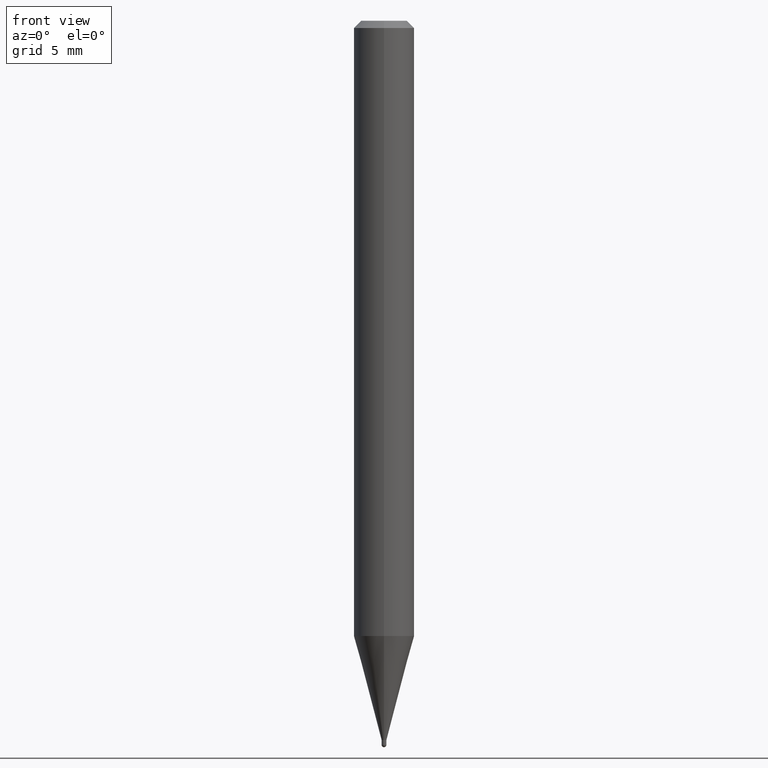
[diagram: clean part render]
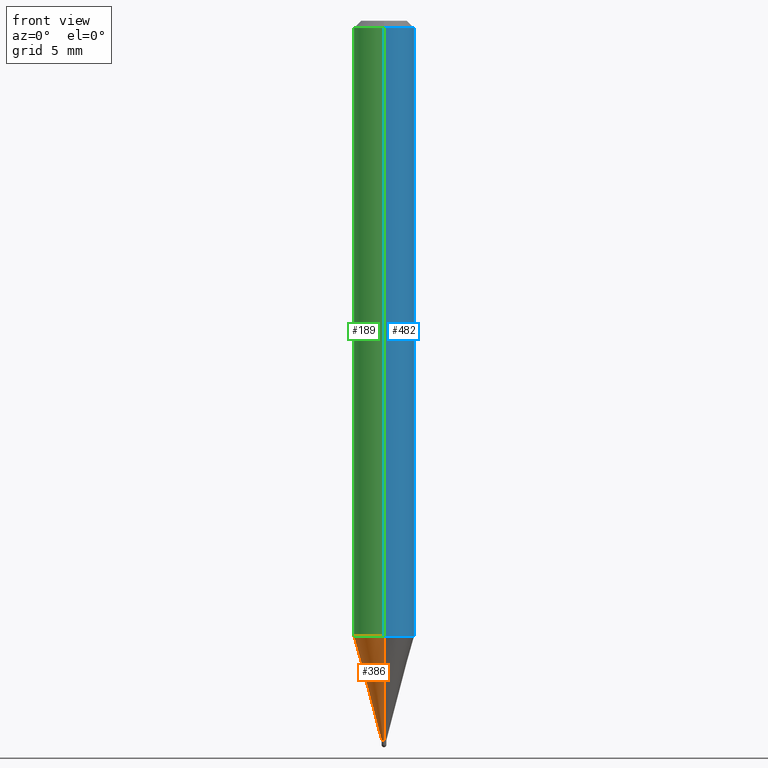
[diagram: same view with three faces highlighted in distinct colors, each labeled with its STEP entity id]
A machine part, front view with three faces highlighted in distinct colors.
Their STEP definitions:

[orange] entity #386 — the highlighted conical surface has half-angle 15 deg.
#7 = CARTESIAN_POINT ( 'NONE',  ( 3.552713678803991097E-17, 0.004999999999994617257, -1.485000000000000098 ) ) ;
#19 = CONICAL_SURFACE ( 'NONE', #312, 0.004999999999999800611, 0.2617993877991576235 ) ;
#25 = DIRECTION ( 'NONE',  ( -1.807323732225379838E-15, -0.2588190451025252914, 0.9659258262890670910 ) ) ;
#29 = DIRECTION ( 'NONE',  ( -6.982962677686265922E-15, -1.000000000000000000, 0.000000000000000000 ) ) ;
#37 = CARTESIAN_POINT ( 'NONE',  ( -4.364351673553606573E-16, -0.06250000000000444089, -1.270407078564795622 ) ) ;
#42 = CIRCLE ( 'NONE', #368, 0.004999999999999800611 ) ;
#61 = ORIENTED_EDGE ( 'NONE', *, *, #192, .F. ) ;
#70 = VERTEX_POINT ( 'NONE', #470 ) ;
#83 = VECTOR ( 'NONE', #118, 39.37007874015748854 ) ;
#102 = DIRECTION ( 'NONE',  ( -2.446180720103943212E-29, 3.490461837591790659E-15, 1.000000000000000000 ) ) ;
#105 = ORIENTED_EDGE ( 'NONE', *, *, #401, .T. ) ;
#118 = DIRECTION ( 'NONE',  ( 1.839019923739650408E-15, 0.2588190451025320082, 0.9659258262890650926 ) ) ;
#134 = VERTEX_POINT ( 'NONE', #157 ) ;
#157 = CARTESIAN_POINT ( 'NONE',  ( 4.440892098500935790E-16, 0.06249999999999556605, -1.270407078564796288 ) ) ;
#161 = VECTOR ( 'NONE', #25, 39.37007874015748143 ) ;
#180 = LINE ( 'NONE', #221, #161 ) ;
#192 = EDGE_CURVE ( 'NONE', #70, #134, #390, .T. ) ;
#219 = VERTEX_POINT ( 'NONE', #472 ) ;
#220 = ORIENTED_EDGE ( 'NONE', *, *, #506, .F. ) ;
#221 = CARTESIAN_POINT ( 'NONE',  ( -3.491481338839360505E-17, -0.005000000000004983097, -1.485000000000000098 ) ) ;
#266 = FACE_OUTER_BOUND ( 'NONE', #463, .T. ) ;
#270 = CIRCLE ( 'NONE', #434, 0.06250000000000000000 ) ;
#312 = AXIS2_PLACEMENT_3D ( 'NONE', #364, #102, #418 ) ;
#330 = ORIENTED_EDGE ( 'NONE', *, *, #433, .T. ) ;
#348 = DIRECTION ( 'NONE',  ( -2.446180720103943212E-29, 3.490461837591790659E-15, 1.000000000000000000 ) ) ;
#350 = DIRECTION ( 'NONE',  ( -6.982962677686265922E-15, -1.000000000000000000, 4.370956789862821150E-15 ) ) ;
#364 = CARTESIAN_POINT ( 'NONE',  ( 3.632578369354356333E-29, -5.183335828823809468E-15, -1.485000000000000098 ) ) ;
#368 = AXIS2_PLACEMENT_3D ( 'NONE', #505, #348, #29 ) ;
#386 = ADVANCED_FACE ( 'NONE', ( #266 ), #19, .T. ) ;
#390 = LINE ( 'NONE', #7, #83 ) ;
#401 = EDGE_CURVE ( 'NONE', #219, #446, #180, .T. ) ;
#418 = DIRECTION ( 'NONE',  ( -6.982962677686265922E-15, -1.000000000000000000, 0.000000000000000000 ) ) ;
#430 = CARTESIAN_POINT ( 'NONE',  ( 3.107645302268779211E-29, -4.434307425936895127E-15, -1.270407078564796066 ) ) ;
#433 = EDGE_CURVE ( 'NONE', #70, #219, #42, .T. ) ;
#434 = AXIS2_PLACEMENT_3D ( 'NONE', #430, #466, #350 ) ;
#446 = VERTEX_POINT ( 'NONE', #37 ) ;
#463 = EDGE_LOOP ( 'NONE', ( #61, #330, #105, #220 ) ) ;
#466 = DIRECTION ( 'NONE',  ( -2.446180720103943212E-29, 3.490461837591790659E-15, 1.000000000000000000 ) ) ;
#470 = CARTESIAN_POINT ( 'NONE',  ( 2.398081733190669114E-16, 0.004999999999994617257, -1.485000000000000098 ) ) ;
#472 = CARTESIAN_POINT ( 'NONE',  ( -3.491481338839360505E-17, -0.005000000000004983097, -1.485000000000000098 ) ) ;
#505 = CARTESIAN_POINT ( 'NONE',  ( 3.632578369354356333E-29, -5.183335828823809468E-15, -1.485000000000000098 ) ) ;
#506 = EDGE_CURVE ( 'NONE', #134, #446, #270, .T. ) ;

[blue] entity #482 — the highlighted cylindrical surface (edge-blend (fillet) strip) has radius 1.5875 mm, axis along (-0, 0, 1).
#2 = CARTESIAN_POINT ( 'NONE',  ( 0.000000000000000000, 0.000000000000000000, 0.000000000000000000 ) ) ;
#37 = CARTESIAN_POINT ( 'NONE',  ( -4.364351673553606573E-16, -0.06250000000000444089, -1.270407078564795622 ) ) ;
#57 = ORIENTED_EDGE ( 'NONE', *, *, #218, .F. ) ;
#77 = CARTESIAN_POINT ( 'NONE',  ( 3.669271080155917288E-31, -5.235692756387689045E-17, -0.01500000000000000812 ) ) ;
#85 = AXIS2_PLACEMENT_3D ( 'NONE', #291, #428, #149 ) ;
#119 = AXIS2_PLACEMENT_3D ( 'NONE', #77, #281, #359 ) ;
#122 = CARTESIAN_POINT ( 'NONE',  ( 4.440892098500625669E-16, 0.06250000000000000000, -2.181538648494869162E-16 ) ) ;
#130 = CARTESIAN_POINT ( 'NONE',  ( -4.364351673553912750E-16, -0.06250000000000005551, -0.01499999999999979128 ) ) ;
#134 = VERTEX_POINT ( 'NONE', #157 ) ;
#145 = ORIENTED_EDGE ( 'NONE', *, *, #444, .F. ) ;
#149 = DIRECTION ( 'NONE',  ( -6.982962677686265922E-15, -1.000000000000000000, 4.370956789862821150E-15 ) ) ;
#151 = DIRECTION ( 'NONE',  ( -6.982962677686265922E-15, -1.000000000000000000, 3.490461837591790659E-15 ) ) ;
#154 = CARTESIAN_POINT ( 'NONE',  ( -4.364351673553916201E-16, -0.06250000000000000000, 2.181538648494869162E-16 ) ) ;
#157 = CARTESIAN_POINT ( 'NONE',  ( 4.440892098500935790E-16, 0.06249999999999556605, -1.270407078564796288 ) ) ;
#173 = ORIENTED_EDGE ( 'NONE', *, *, #421, .T. ) ;
#177 = ORIENTED_EDGE ( 'NONE', *, *, #468, .T. ) ;
#187 = LINE ( 'NONE', #122, #484 ) ;
#197 = CIRCLE ( 'NONE', #85, 0.06250000000000000000 ) ;
#199 = DIRECTION ( 'NONE',  ( -2.446180720103942932E-29, 3.490461837591790659E-15, 1.000000000000000000 ) ) ;
#200 = CARTESIAN_POINT ( 'NONE',  ( 4.440892098500937762E-16, 0.06249999999999993755, -0.01500000000000022669 ) ) ;
#218 = EDGE_CURVE ( 'NONE', #349, #232, #278, .T. ) ;
#227 = DIRECTION ( 'NONE',  ( -2.446180720103943212E-29, 3.490461837591790659E-15, 1.000000000000000000 ) ) ;
#232 = VERTEX_POINT ( 'NONE', #200 ) ;
#278 = CIRCLE ( 'NONE', #119, 0.06250000000000000000 ) ;
#281 = DIRECTION ( 'NONE',  ( -2.446180720103943212E-29, 3.490461837591790659E-15, 1.000000000000000000 ) ) ;
#291 = CARTESIAN_POINT ( 'NONE',  ( 3.107645302268779211E-29, -4.434307425936895127E-15, -1.270407078564796066 ) ) ;
#306 = DIRECTION ( 'NONE',  ( -2.446180720103942932E-29, 3.490461837591790659E-15, 1.000000000000000000 ) ) ;
#327 = EDGE_LOOP ( 'NONE', ( #173, #177, #57, #145 ) ) ;
#341 = VECTOR ( 'NONE', #306, 39.37007874015748143 ) ;
#345 = LINE ( 'NONE', #154, #341 ) ;
#349 = VERTEX_POINT ( 'NONE', #130 ) ;
#356 = FACE_OUTER_BOUND ( 'NONE', #327, .T. ) ;
#359 = DIRECTION ( 'NONE',  ( -6.982962677686265922E-15, -1.000000000000000000, 3.483106191921935554E-15 ) ) ;
#421 = EDGE_CURVE ( 'NONE', #446, #134, #197, .T. ) ;
#428 = DIRECTION ( 'NONE',  ( -2.446180720103943212E-29, 3.490461837591790659E-15, 1.000000000000000000 ) ) ;
#442 = AXIS2_PLACEMENT_3D ( 'NONE', #2, #227, #151 ) ;
#444 = EDGE_CURVE ( 'NONE', #446, #349, #345, .T. ) ;
#446 = VERTEX_POINT ( 'NONE', #37 ) ;
#468 = EDGE_CURVE ( 'NONE', #134, #232, #187, .T. ) ;
#482 = ADVANCED_FACE ( 'NONE', ( #356 ), #503, .T. ) ;
#484 = VECTOR ( 'NONE', #199, 39.37007874015748143 ) ;
#503 = CYLINDRICAL_SURFACE ( 'NONE', #442, 0.06250000000000000000 ) ;

[green] entity #189 — the highlighted cylindrical surface (edge-blend (fillet) strip) has radius 1.5875 mm, axis along (-0, 0, 1).
#15 = ORIENTED_EDGE ( 'NONE', *, *, #468, .F. ) ;
#37 = CARTESIAN_POINT ( 'NONE',  ( -4.364351673553606573E-16, -0.06250000000000444089, -1.270407078564795622 ) ) ;
#97 = ORIENTED_EDGE ( 'NONE', *, *, #444, .T. ) ;
#122 = CARTESIAN_POINT ( 'NONE',  ( 4.440892098500625669E-16, 0.06250000000000000000, -2.181538648494869162E-16 ) ) ;
#130 = CARTESIAN_POINT ( 'NONE',  ( -4.364351673553912750E-16, -0.06250000000000005551, -0.01499999999999979128 ) ) ;
#134 = VERTEX_POINT ( 'NONE', #157 ) ;
#153 = CIRCLE ( 'NONE', #260, 0.06250000000000000000 ) ;
#154 = CARTESIAN_POINT ( 'NONE',  ( -4.364351673553916201E-16, -0.06250000000000000000, 2.181538648494869162E-16 ) ) ;
#155 = DIRECTION ( 'NONE',  ( -6.982962677686265922E-15, -1.000000000000000000, 3.490461837591790659E-15 ) ) ;
#157 = CARTESIAN_POINT ( 'NONE',  ( 4.440892098500935790E-16, 0.06249999999999556605, -1.270407078564796288 ) ) ;
#187 = LINE ( 'NONE', #122, #484 ) ;
#189 = ADVANCED_FACE ( 'NONE', ( #437 ), #353, .T. ) ;
#199 = DIRECTION ( 'NONE',  ( -2.446180720103942932E-29, 3.490461837591790659E-15, 1.000000000000000000 ) ) ;
#200 = CARTESIAN_POINT ( 'NONE',  ( 4.440892098500937762E-16, 0.06249999999999993755, -0.01500000000000022669 ) ) ;
#232 = VERTEX_POINT ( 'NONE', #200 ) ;
#238 = CARTESIAN_POINT ( 'NONE',  ( 3.669271080155917288E-31, -5.235692756387689045E-17, -0.01500000000000000812 ) ) ;
#260 = AXIS2_PLACEMENT_3D ( 'NONE', #238, #268, #388 ) ;
#268 = DIRECTION ( 'NONE',  ( -2.446180720103943212E-29, 3.490461837591790659E-15, 1.000000000000000000 ) ) ;
#270 = CIRCLE ( 'NONE', #434, 0.06250000000000000000 ) ;
#285 = CARTESIAN_POINT ( 'NONE',  ( 0.000000000000000000, 0.000000000000000000, 0.000000000000000000 ) ) ;
#306 = DIRECTION ( 'NONE',  ( -2.446180720103942932E-29, 3.490461837591790659E-15, 1.000000000000000000 ) ) ;
#340 = AXIS2_PLACEMENT_3D ( 'NONE', #285, #510, #155 ) ;
#341 = VECTOR ( 'NONE', #306, 39.37007874015748143 ) ;
#345 = LINE ( 'NONE', #154, #341 ) ;
#349 = VERTEX_POINT ( 'NONE', #130 ) ;
#350 = DIRECTION ( 'NONE',  ( -6.982962677686265922E-15, -1.000000000000000000, 4.370956789862821150E-15 ) ) ;
#353 = CYLINDRICAL_SURFACE ( 'NONE', #340, 0.06250000000000000000 ) ;
#373 = EDGE_LOOP ( 'NONE', ( #15, #415, #97, #409 ) ) ;
#388 = DIRECTION ( 'NONE',  ( -6.982962677686265922E-15, -1.000000000000000000, 3.483106191921935554E-15 ) ) ;
#409 = ORIENTED_EDGE ( 'NONE', *, *, #461, .F. ) ;
#415 = ORIENTED_EDGE ( 'NONE', *, *, #506, .T. ) ;
#430 = CARTESIAN_POINT ( 'NONE',  ( 3.107645302268779211E-29, -4.434307425936895127E-15, -1.270407078564796066 ) ) ;
#434 = AXIS2_PLACEMENT_3D ( 'NONE', #430, #466, #350 ) ;
#437 = FACE_OUTER_BOUND ( 'NONE', #373, .T. ) ;
#444 = EDGE_CURVE ( 'NONE', #446, #349, #345, .T. ) ;
#446 = VERTEX_POINT ( 'NONE', #37 ) ;
#461 = EDGE_CURVE ( 'NONE', #232, #349, #153, .T. ) ;
#466 = DIRECTION ( 'NONE',  ( -2.446180720103943212E-29, 3.490461837591790659E-15, 1.000000000000000000 ) ) ;
#468 = EDGE_CURVE ( 'NONE', #134, #232, #187, .T. ) ;
#484 = VECTOR ( 'NONE', #199, 39.37007874015748143 ) ;
#506 = EDGE_CURVE ( 'NONE', #134, #446, #270, .T. ) ;
#510 = DIRECTION ( 'NONE',  ( -2.446180720103943212E-29, 3.490461837591790659E-15, 1.000000000000000000 ) ) ;